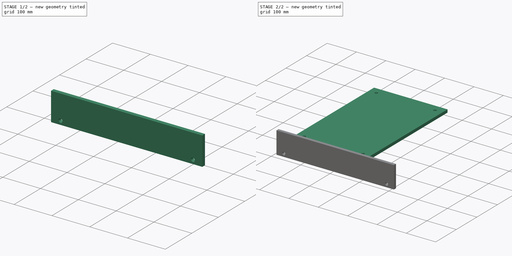
[diagram: build sequence overview — one tinted view per stage of 2, left to right]
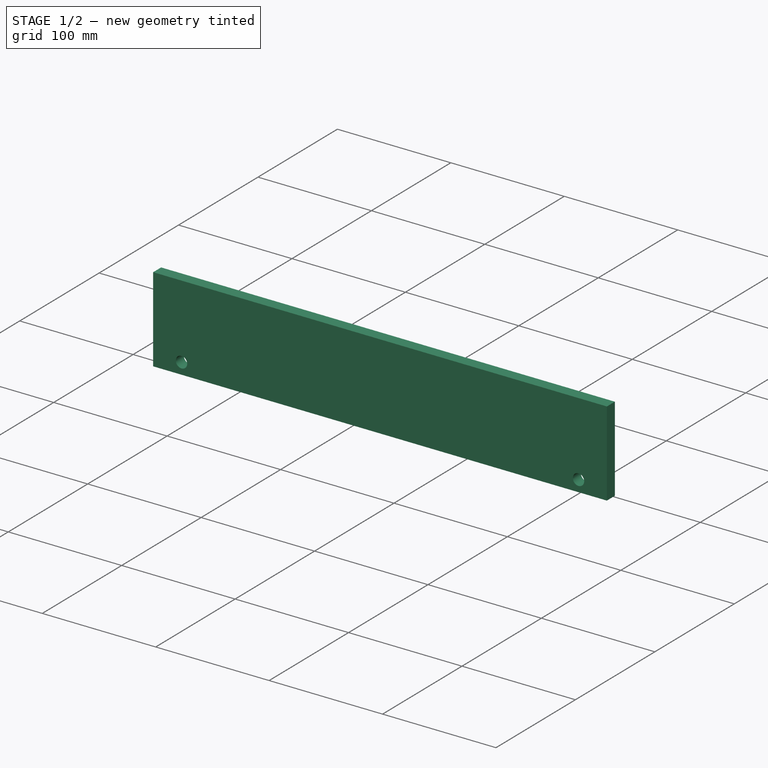
[diagram: stage 1 of 2 — iso view after this stage's code; geometry added in this stage tinted green]
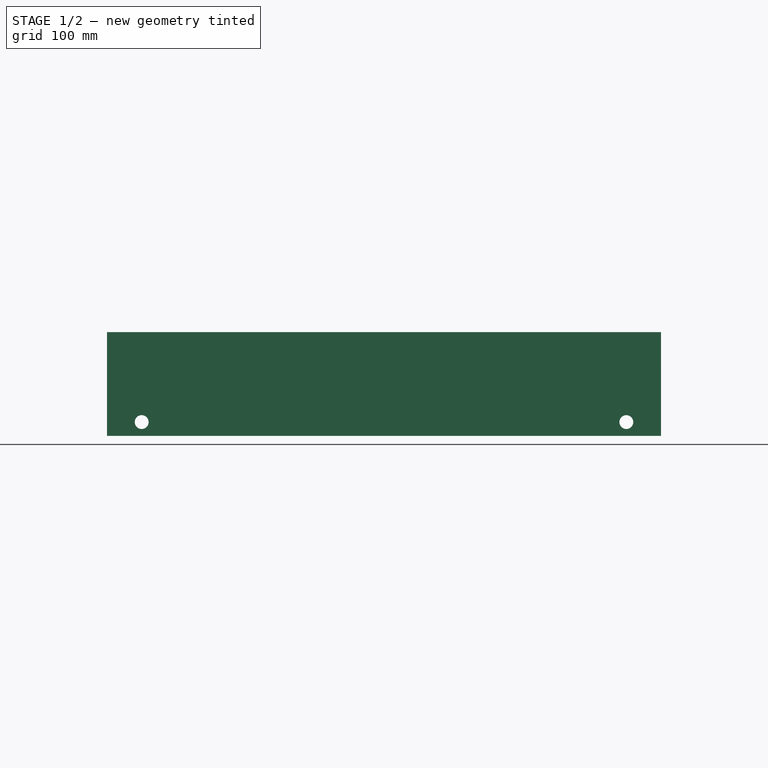
[diagram: stage 1 of 2 — front view after this stage's code; geometry added in this stage tinted green]
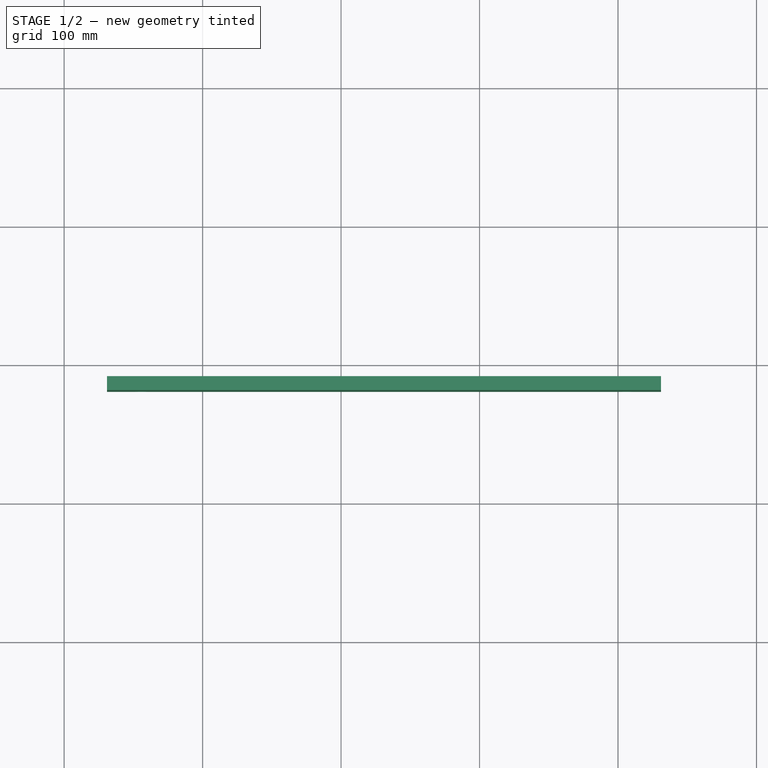
[diagram: stage 1 of 2 — top view after this stage's code; geometry added in this stage tinted green]
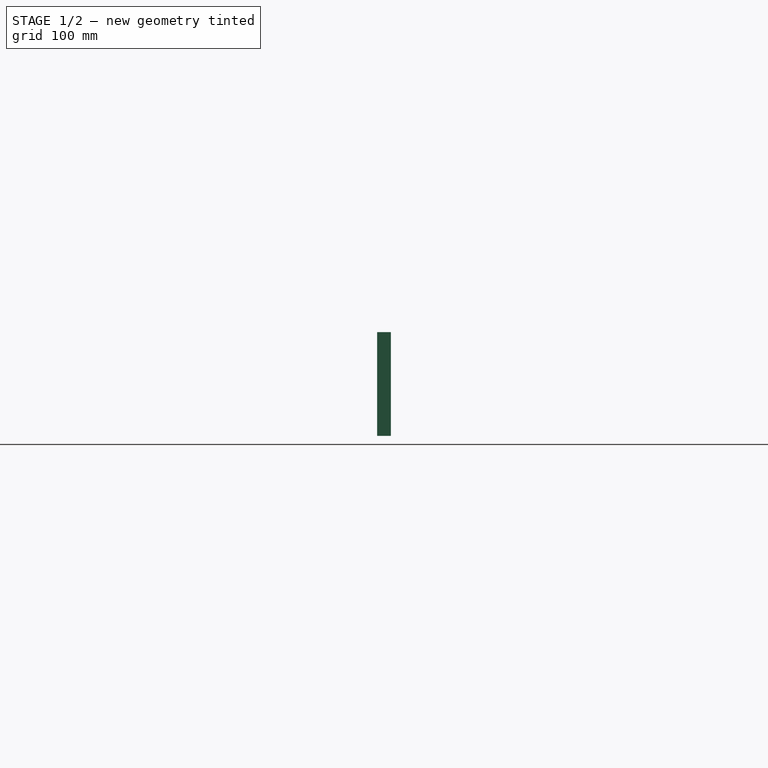
[diagram: stage 1 of 2 — right view after this stage's code; geometry added in this stage tinted green]
FCSTD DOCUMENT  (FreeCAD 0.17R13327 (Git))
Label: ArchPanels
License: All rights reserved
LicenseURL: http://en.wikipedia.org/wiki/All_rights_reserved
objects: Part::FeaturePython×5, Sketcher::SketchObject×2, PartDesign::Body×2
note: 9 computed .brp shape members not serialized (recipe doc carries the construction recipe); baked Part::Feature solids carry a one-line shape summary decoded from their .brp

FEATURE [Part::FeaturePython] PanelView  label="View of Panel"  # WARN: FeaturePython — macro-defined, semantics opaque (R4)
  Placement = pos=(-230.553,-280.435,0) rot=(0,0,1;0rad)
  Source = -> Panel
  TagPosition = (0,0,0)
  TagRotation = 0
  TagSize = 10
  TagText = %tag%
FEATURE [Sketcher::SketchObject] Sketch001
  MapMode = 5
  Support = -> [XY_Plane001]
  sketch-geometry (7):
    g0: LineSegment StartX=0 StartY=75 StartZ=0 EndX=400 EndY=75 EndZ=0
    g1: LineSegment StartX=400 StartY=75 StartZ=0 EndX=400 EndY=0 EndZ=0
    g2: LineSegment StartX=400 StartY=0 StartZ=0 EndX=0 EndY=0 EndZ=0
    g3: LineSegment StartX=0 StartY=0 StartZ=0 EndX=0 EndY=75 EndZ=0
    g4: LineSegment [constr] StartX=25 StartY=10 StartZ=0 EndX=375 EndY=10 EndZ=0
    g5: Circle CenterX=25 CenterY=10 CenterZ=0 NormalX=0 NormalY=0 NormalZ=1 AngleXU=0 Radius=5
    g6: Circle CenterX=375 CenterY=10 CenterZ=0 NormalX=0 NormalY=0 NormalZ=1 AngleXU=0 Radius=5
  constraints (19):
    c: Coincident(g0,g1)
    c: Coincident(g1,g2)
    c: Coincident(g2,g3)
    c: Coincident(g3,g0)
    c: Horizontal(g0)
    c: Horizontal(g2)
    c: Vertical(g1)
    c: Vertical(g3)
    c: Coincident(g2,g-1)
    c: DistanceY(g1,g1) = 75
    c: DistanceX(g0,g0) = 400
    c: Horizontal(g4)
    c: Coincident(g5,g4)
    c: Coincident(g6,g4)
    c: DistanceX(g4,g4) = 350
    c: Equal(g5,g6)
    c: Radius(g5) = 5
    c: DistanceX(g4) = 25
    c: DistanceY(g4) = 10
FEATURE [PartDesign::Body] Body001
  Group = -> [Sketch001]
  Origin = -> Body001Origin
FEATURE [Part::FeaturePython] Panel001  # WARN: FeaturePython — macro-defined, semantics opaque (R4)
  Area = 29842.9
  Base = -> Sketch001
  FaceMaker = 0
  HorizontalArea = 0
  Length = 0
  MoveWithHost = false
  Normal = (0,0,0)
  PerimeterLength = 0
  Placement = pos=(-969,-109,0) rot=(1,0,0;1.5708rad)
  Role = 0
  Sheets = 1
  Thickness = 10
  VerticalArea = 0
  WaveDirection = 0
  WaveHeight = 0
  WaveLength = 0
  WaveType = 0
  Width = 0
FEATURE [Part::FeaturePython] PanelView001  label="View of Panel001"  # WARN: FeaturePython — macro-defined, semantics opaque (R4)
  Placement = pos=(38.3757,258.085,0) rot=(0,0,1;0rad)
  Source = -> Panel001
  TagPosition = (0,0,0)
  TagRotation = 0
  TagSize = 10
  TagText = %tag%
FEATURE [Part::FeaturePython] PanelSheet  # WARN: FeaturePython — macro-defined, semantics opaque (R4)
  FillRatio = 12
  FontFile = <path>
  Group = -> [PanelView001,PanelView]
  Height = 1000
  TagPosition = (-450,-450,0)
  TagRotation = 0
  TagSize = 10
  TagText = sheet1
  Width = 1000
note: 1 file-system path scrubbed to <path> (originals preserved in the JSON sidecar)
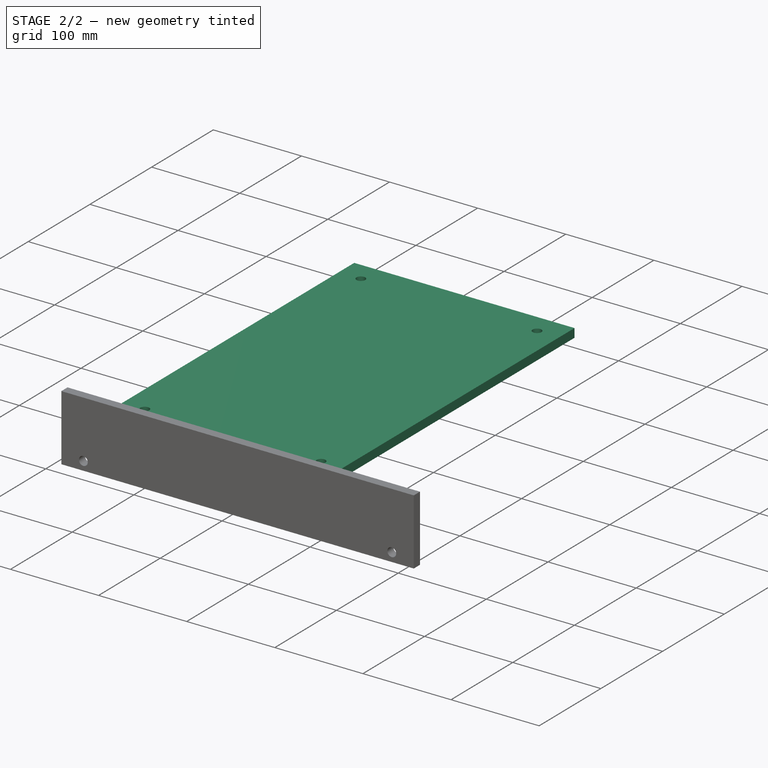
[diagram: stage 2 of 2 — iso view after this stage's code; geometry added in this stage tinted green]
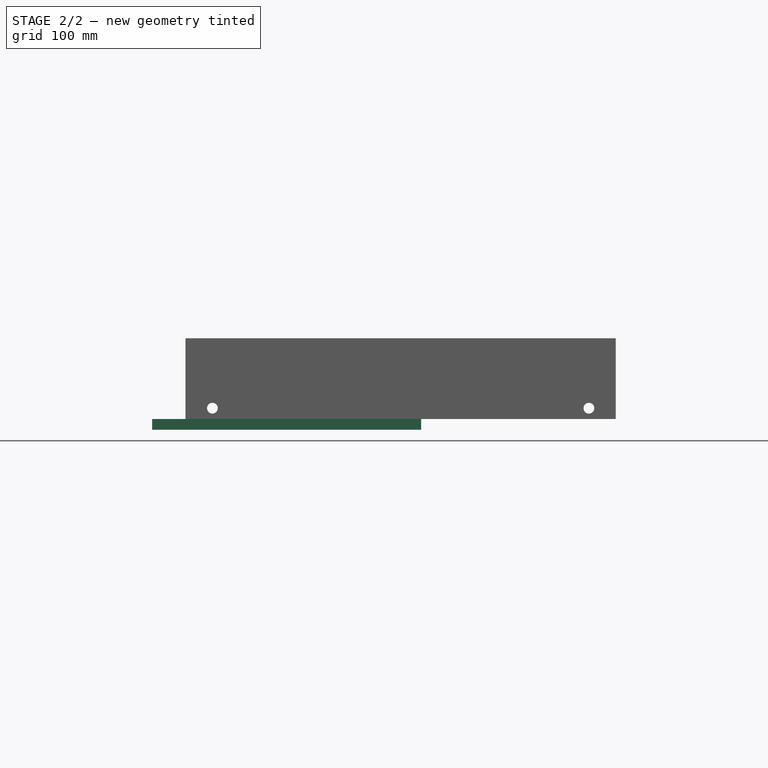
[diagram: stage 2 of 2 — front view after this stage's code; geometry added in this stage tinted green]
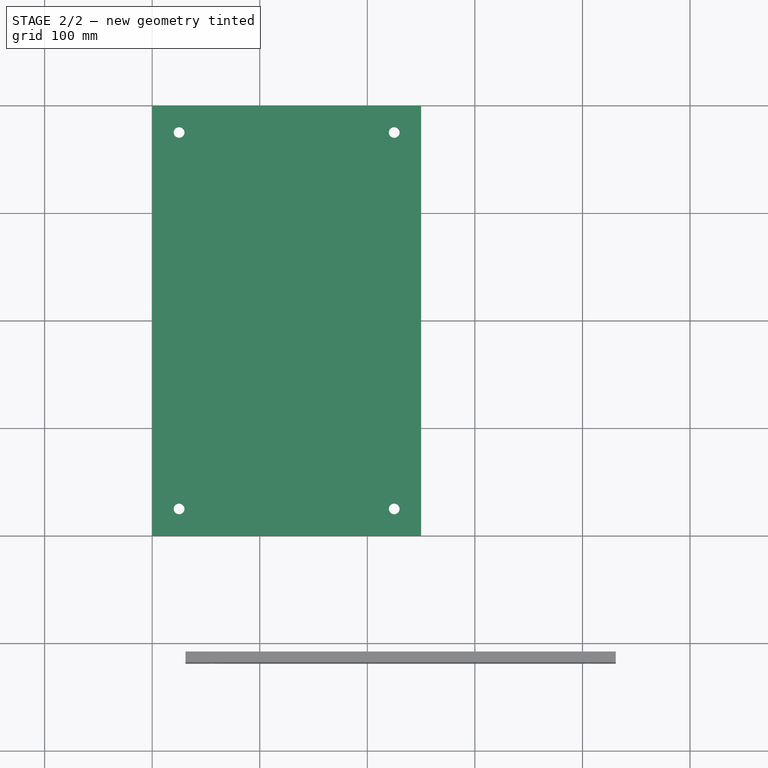
[diagram: stage 2 of 2 — top view after this stage's code; geometry added in this stage tinted green]
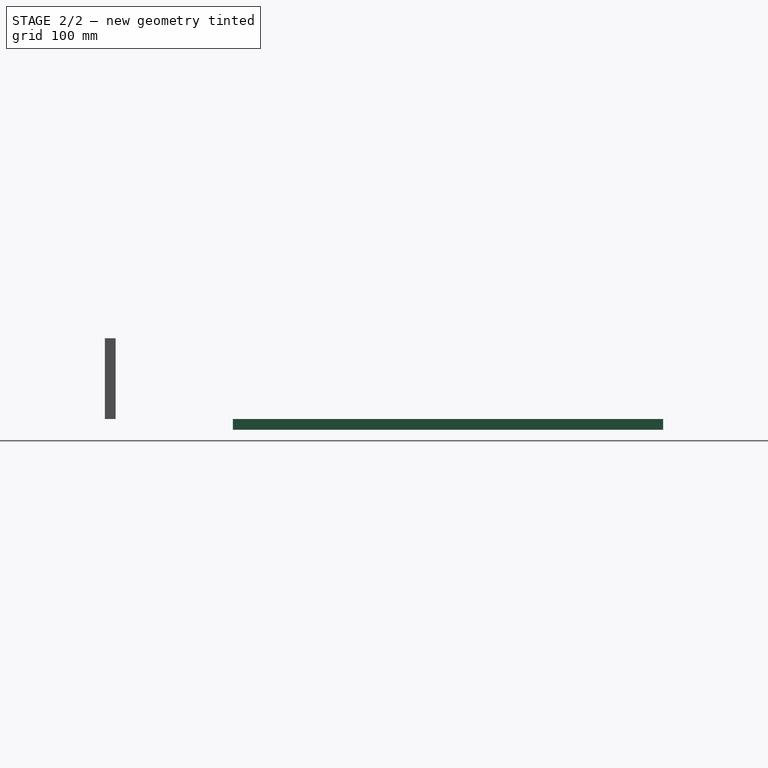
[diagram: stage 2 of 2 — right view after this stage's code; geometry added in this stage tinted green]
FEATURE [Sketcher::SketchObject] Sketch
  MapMode = 5
  Support = -> [XY_Plane]
  sketch-geometry (12):
    g0: LineSegment StartX=0 StartY=0 StartZ=0 EndX=250 EndY=0 EndZ=0
    g1: LineSegment StartX=250 StartY=0 StartZ=0 EndX=250 EndY=400 EndZ=0
    g2: LineSegment StartX=250 StartY=400 StartZ=0 EndX=0 EndY=400 EndZ=0
    g3: LineSegment StartX=0 StartY=400 StartZ=0 EndX=0 EndY=0 EndZ=0
    g4: Circle CenterX=25 CenterY=375 CenterZ=0 NormalX=0 NormalY=0 NormalZ=1 AngleXU=0 Radius=5
    g5: Circle CenterX=225 CenterY=25 CenterZ=0 NormalX=0 NormalY=0 NormalZ=1 AngleXU=0 Radius=5
    g6: Circle CenterX=225 CenterY=375 CenterZ=0 NormalX=0 NormalY=0 NormalZ=1 AngleXU=0 Radius=5
    g7: Circle CenterX=25 CenterY=25 CenterZ=0 NormalX=0 NormalY=0 NormalZ=1 AngleXU=0 Radius=5
    g8: LineSegment [constr] StartX=25 StartY=375 StartZ=0 EndX=225 EndY=375 EndZ=0
    g9: LineSegment [constr] StartX=225 StartY=375 StartZ=0 EndX=225 EndY=25 EndZ=0
    g10: LineSegment [constr] StartX=225 StartY=25 StartZ=0 EndX=25 EndY=25 EndZ=0
    g11: LineSegment [constr] StartX=25 StartY=25 StartZ=0 EndX=25 EndY=375 EndZ=0
  constraints (31):
    c: Coincident(g0,g1)
    c: Coincident(g1,g2)
    c: Coincident(g2,g3)
    c: Coincident(g3,g0)
    c: Horizontal(g0)
    c: Horizontal(g2)
    c: Vertical(g1)
    c: Vertical(g3)
    c: Coincident(g0,g-1)
    c: DistanceX(g2,g2) = 250
    c: DistanceY(g1,g1) = 400
    c: Coincident(g8,g9)
    c: Coincident(g9,g10)
    c: Coincident(g10,g11)
    c: Coincident(g11,g8)
    c: Horizontal(g8)
    c: Horizontal(g10)
    c: Vertical(g9)
    c: Vertical(g11)
    c: Coincident(g8,g4)
    c: Coincident(g9,g5)
    c: Coincident(g7,g10)
    c: Coincident(g6,g8)
    c: DistanceX(g8,g8) = 200
    c: DistanceY(g11,g11) = 350
    c: DistanceX(g7) = 25
    c: DistanceY(g7) = 25
    c: Equal(g4,g6)
    c: Equal(g6,g5)
    c: Equal(g5,g7)
    c: Radius(g4) = 5
FEATURE [PartDesign::Body] Body
  Group = -> [Sketch]
  Origin = -> BodyOrigin
FEATURE [Part::FeaturePython] Panel  # WARN: FeaturePython — macro-defined, semantics opaque (R4)
  Area = 99685.8
  Base = -> Sketch
  FaceMaker = 0
  HorizontalArea = 0
  Length = 0
  MoveWithHost = false
  Normal = (0,0,0)
  PerimeterLength = 0
  Placement = pos=(-1000,0,0) rot=(0,0,1;0rad)
  Role = 0
  Sheets = 1
  Thickness = 10
  VerticalArea = 0
  WaveDirection = 0
  WaveHeight = 0
  WaveLength = 0
  WaveType = 0
  Width = 0
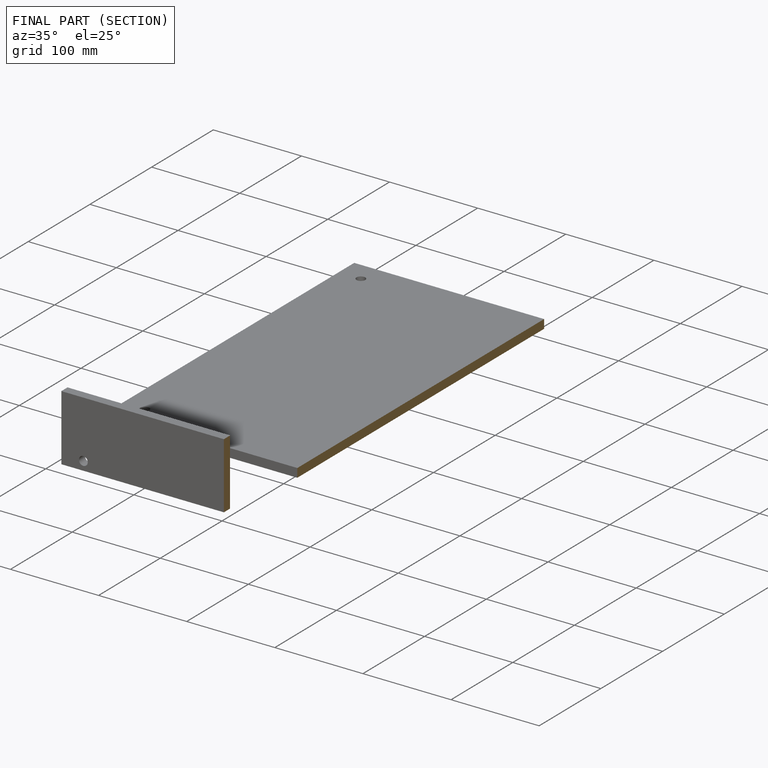
[diagram: finished part — half-section view (interior)]
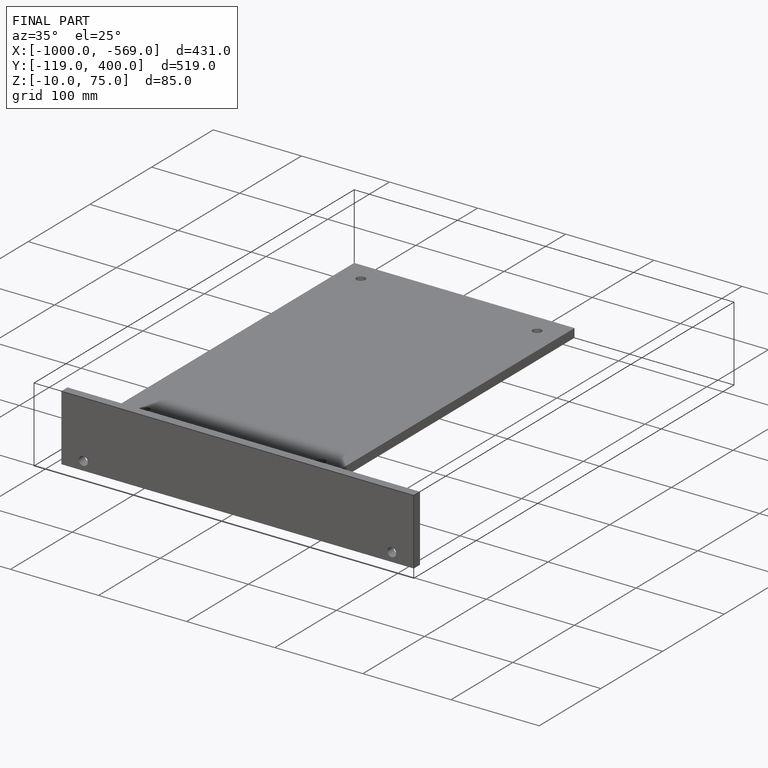
[diagram: finished part — iso view with bounding-box wireframe]
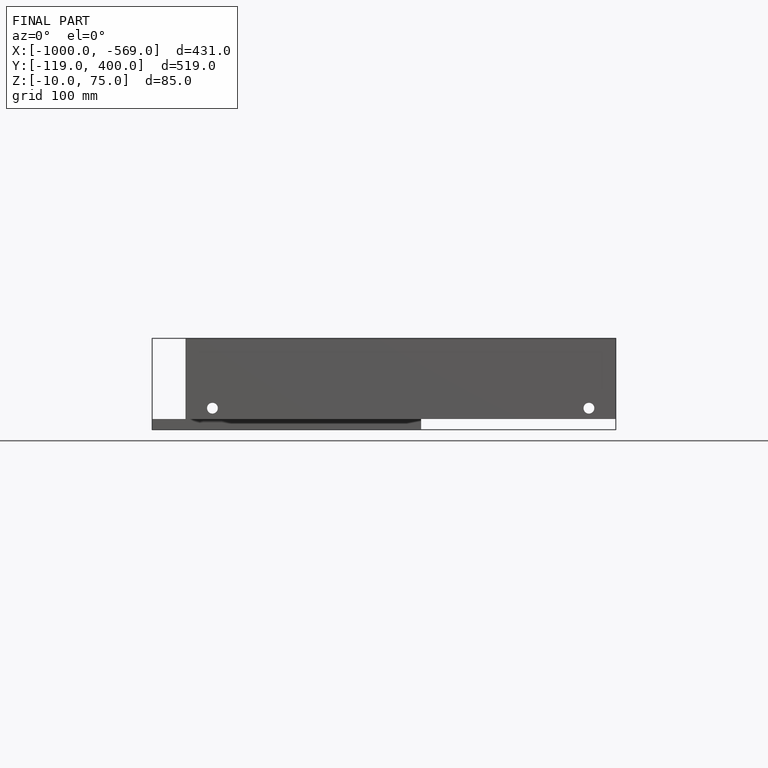
[diagram: finished part — front view with bounding-box wireframe]
